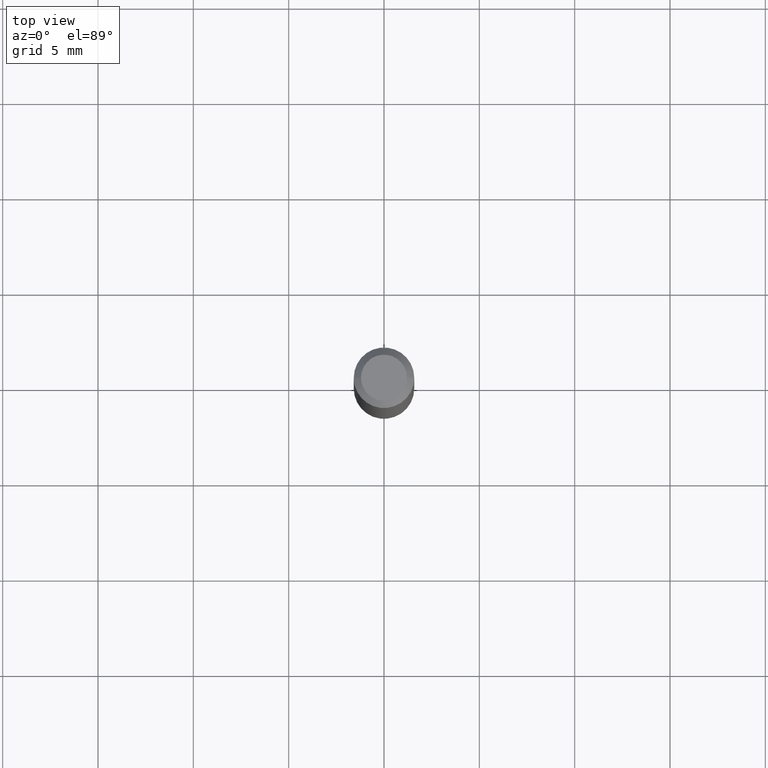
[diagram: clean part render]
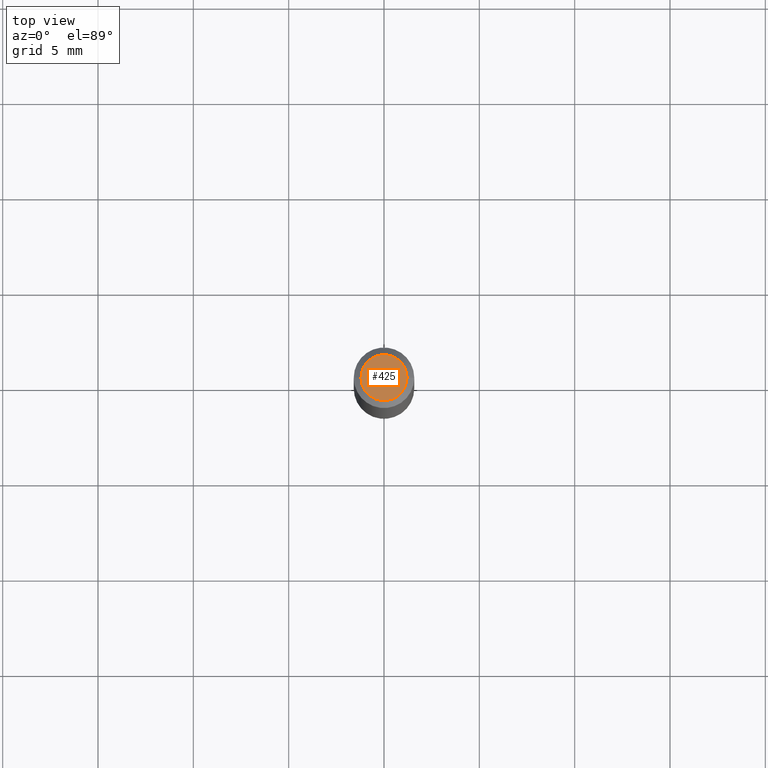
[diagram: same view with one face highlighted and labeled with its STEP entity id]
A machine part, top view. The second image highlights one B-rep face of the part: STEP entity #425.
In plain terms, the highlighted planar face has unit normal (0, -0, -1).
Its self-contained STEP definition (entity closure, byte-faithful):
#13 = VERTEX_POINT ( 'NONE', #313 ) ;
#28 = PLANE ( 'NONE',  #393 ) ;
#30 = AXIS2_PLACEMENT_3D ( 'NONE', #179, #336, #374 ) ;
#46 = DIRECTION ( 'NONE',  ( -2.445468806185136597E-29, 3.491481338843145583E-15, 1.000000000000000000 ) ) ;
#54 = DIRECTION ( 'NONE',  ( -1.000000000000000000, 6.982962677686265922E-15, -4.876176775795935793E-29 ) ) ;
#115 = DIRECTION ( 'NONE',  ( 1.000000000000000000, -6.982962677686267499E-15, 4.852736867747366768E-29 ) ) ;
#120 = DIRECTION ( 'NONE',  ( 2.438088387897960049E-29, -3.491481338843145188E-15, -1.000000000000000000 ) ) ;
#168 = ORIENTED_EDGE ( 'NONE', *, *, #419, .T. ) ;
#179 = CARTESIAN_POINT ( 'NONE',  ( -6.039856226162565090E-45, 8.623313963198306787E-31, 2.469815280770059421E-16 ) ) ;
#199 = EDGE_LOOP ( 'NONE', ( #440, #168 ) ) ;
#211 = CIRCLE ( 'NONE', #352, 0.04749999999999999362 ) ;
#233 = CIRCLE ( 'NONE', #30, 0.04749999999999999362 ) ;
#234 = VERTEX_POINT ( 'NONE', #272 ) ;
#264 = CARTESIAN_POINT ( 'NONE',  ( 3.316907271900976096E-16, 0.04749999999999999362, -4.235459955654642541E-17 ) ) ;
#267 = FACE_OUTER_BOUND ( 'NONE', #199, .T. ) ;
#272 = CARTESIAN_POINT ( 'NONE',  ( -0.04749999999999999362, 3.578768372314215436E-16, 2.469815280770035755E-16 ) ) ;
#292 = CARTESIAN_POINT ( 'NONE',  ( -6.039856226162565090E-45, 8.623313963198306787E-31, 2.469815280770059421E-16 ) ) ;
#313 = CARTESIAN_POINT ( 'NONE',  ( 0.04749999999999999362, -4.035134999187574186E-16, 2.469815280770085059E-16 ) ) ;
#336 = DIRECTION ( 'NONE',  ( -2.445468806185136597E-29, 3.491481338843145583E-15, 1.000000000000000000 ) ) ;
#350 = EDGE_CURVE ( 'NONE', #234, #13, #211, .T. ) ;
#352 = AXIS2_PLACEMENT_3D ( 'NONE', #292, #46, #115 ) ;
#374 = DIRECTION ( 'NONE',  ( 1.000000000000000000, -6.982962677686267499E-15, 4.852736867747366768E-29 ) ) ;
#393 = AXIS2_PLACEMENT_3D ( 'NONE', #264, #120, #54 ) ;
#419 = EDGE_CURVE ( 'NONE', #13, #234, #233, .T. ) ;
#425 = ADVANCED_FACE ( 'NONE', ( #267 ), #28, .F. ) ;
#440 = ORIENTED_EDGE ( 'NONE', *, *, #350, .T. ) ;